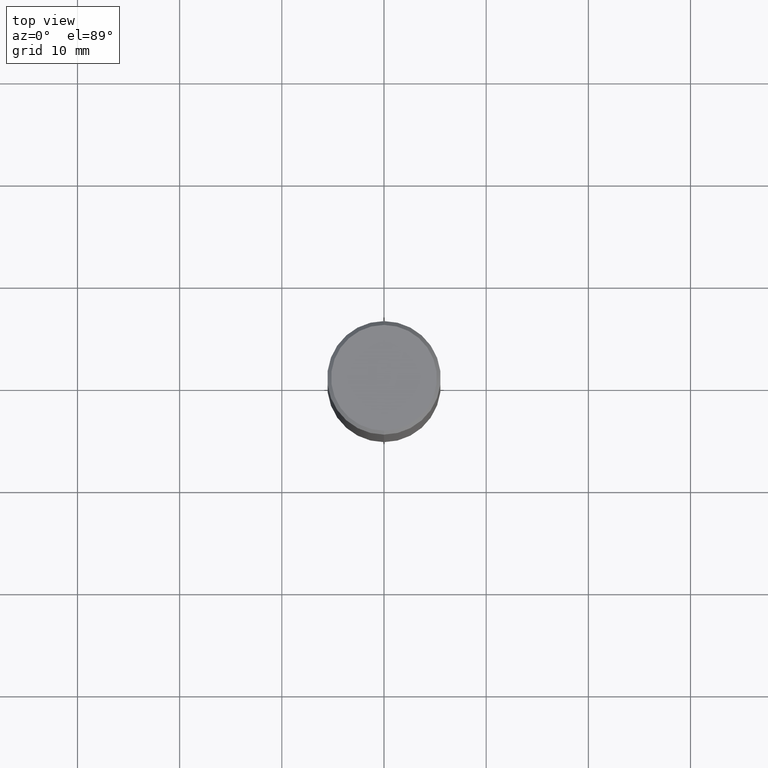
[diagram: clean part render]
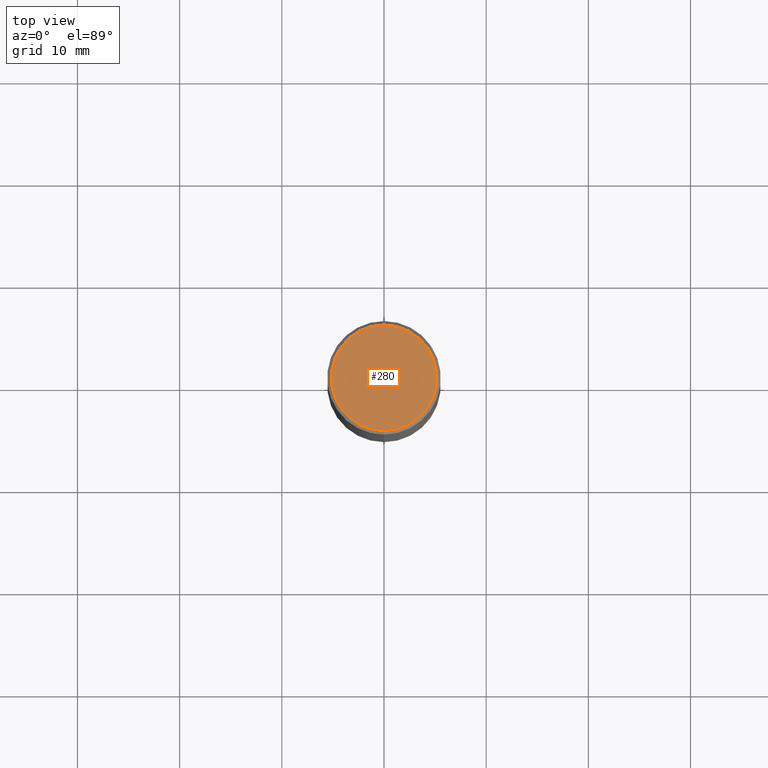
[diagram: same view with one face highlighted and labeled with its STEP entity id]
A machine part, top view. The second image highlights one B-rep face of the part: STEP entity #280.
In plain terms, the highlighted planar face has unit normal (0, -0, -1).
Its self-contained STEP definition (entity closure, byte-faithful):
#3 = CIRCLE ( 'NONE', #336, 0.2037499999999999867 ) ;
#39 = AXIS2_PLACEMENT_3D ( 'NONE', #309, #434, #471 ) ;
#40 = CARTESIAN_POINT ( 'NONE',  ( 2.425695952394959813E-45, -3.463067484814240316E-31, -9.918882608645434798E-17 ) ) ;
#81 = EDGE_CURVE ( 'NONE', #344, #173, #155, .T. ) ;
#83 = AXIS2_PLACEMENT_3D ( 'NONE', #40, #122, #276 ) ;
#122 = DIRECTION ( 'NONE',  ( -2.445533482048360723E-29, 3.491388719325887151E-15, 1.000000000000000000 ) ) ;
#155 = CIRCLE ( 'NONE', #83, 0.2037499999999999867 ) ;
#160 = PLANE ( 'NONE',  #39 ) ;
#173 = VERTEX_POINT ( 'NONE', #490 ) ;
#235 = FACE_OUTER_BOUND ( 'NONE', #389, .T. ) ;
#266 = ORIENTED_EDGE ( 'NONE', *, *, #81, .T. ) ;
#276 = DIRECTION ( 'NONE',  ( -6.982962677686265133E-15, -1.000000000000000000, 3.491388719325886756E-15 ) ) ;
#280 = ADVANCED_FACE ( 'NONE', ( #235 ), #160, .F. ) ;
#286 = CARTESIAN_POINT ( 'NONE',  ( 2.425695952394959813E-45, -3.463067484814240316E-31, -9.918882608645434798E-17 ) ) ;
#291 = ORIENTED_EDGE ( 'NONE', *, *, #486, .T. ) ;
#309 = CARTESIAN_POINT ( 'NONE',  ( 1.422778645578576487E-15, 0.2037499999999999867, -7.609648646058765676E-16 ) ) ;
#336 = AXIS2_PLACEMENT_3D ( 'NONE', #286, #446, #406 ) ;
#344 = VERTEX_POINT ( 'NONE', #402 ) ;
#389 = EDGE_LOOP ( 'NONE', ( #291, #266 ) ) ;
#402 = CARTESIAN_POINT ( 'NONE',  ( -1.449280202029235538E-15, -0.2037499999999999867, 6.121816254761950209E-16 ) ) ;
#406 = DIRECTION ( 'NONE',  ( -6.982962677686265133E-15, -1.000000000000000000, 3.491388719325886756E-15 ) ) ;
#434 = DIRECTION ( 'NONE',  ( 2.445533482048360442E-29, -3.491388719325887151E-15, -1.000000000000000000 ) ) ;
#446 = DIRECTION ( 'NONE',  ( -2.445533482048360723E-29, 3.491388719325887151E-15, 1.000000000000000000 ) ) ;
#471 = DIRECTION ( 'NONE',  ( 6.982962677686265922E-15, 1.000000000000000000, -3.491388719325887151E-15 ) ) ;
#486 = EDGE_CURVE ( 'NONE', #173, #344, #3, .T. ) ;
#490 = CARTESIAN_POINT ( 'NONE',  ( 1.475150865661223764E-15, 0.2037499999999999867, -8.105592776491037169E-16 ) ) ;